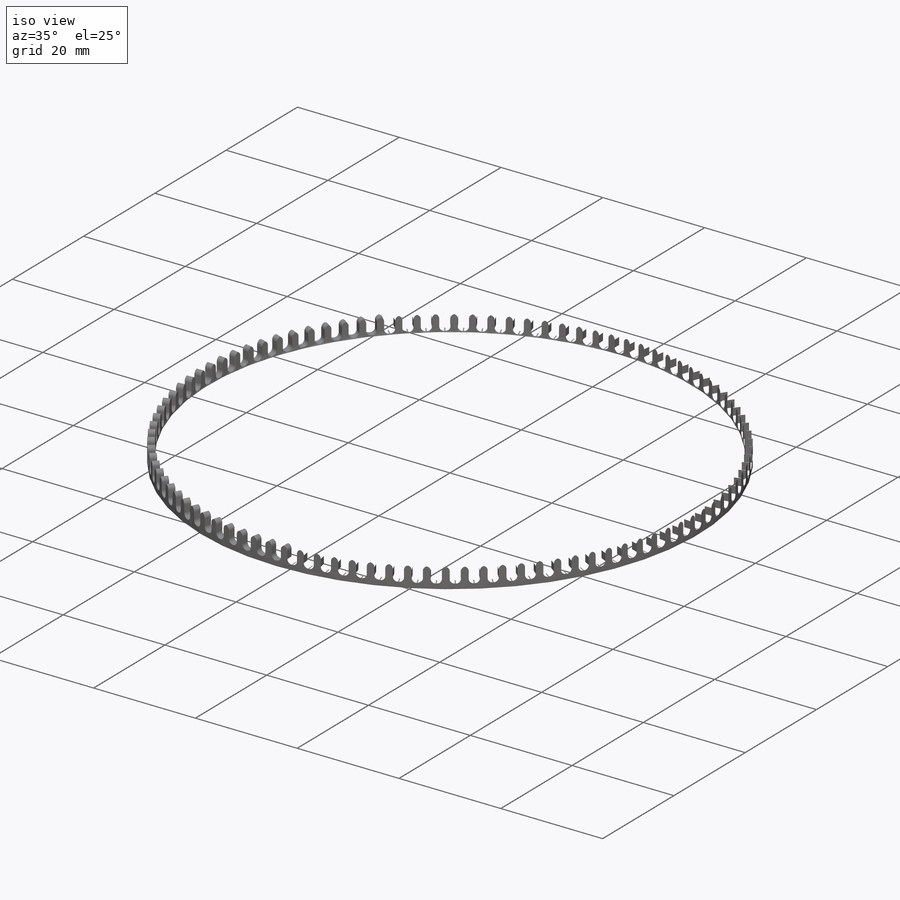
[diagram: iso view]
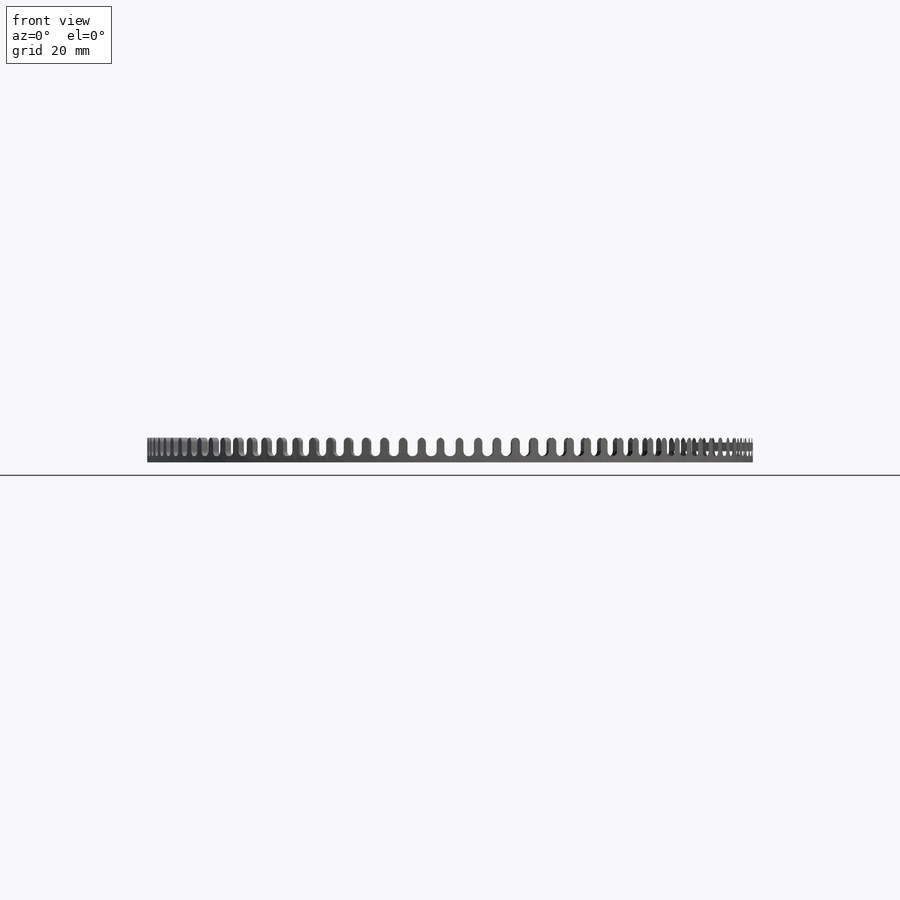
[diagram: front view]
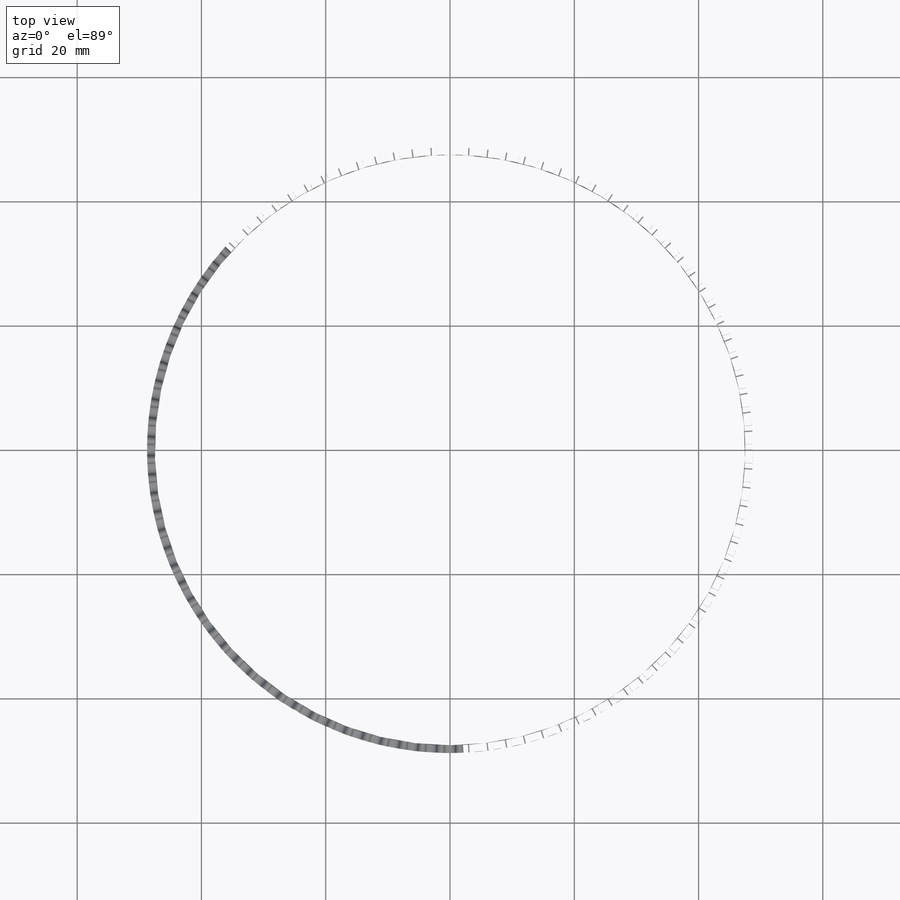
[diagram: top view]
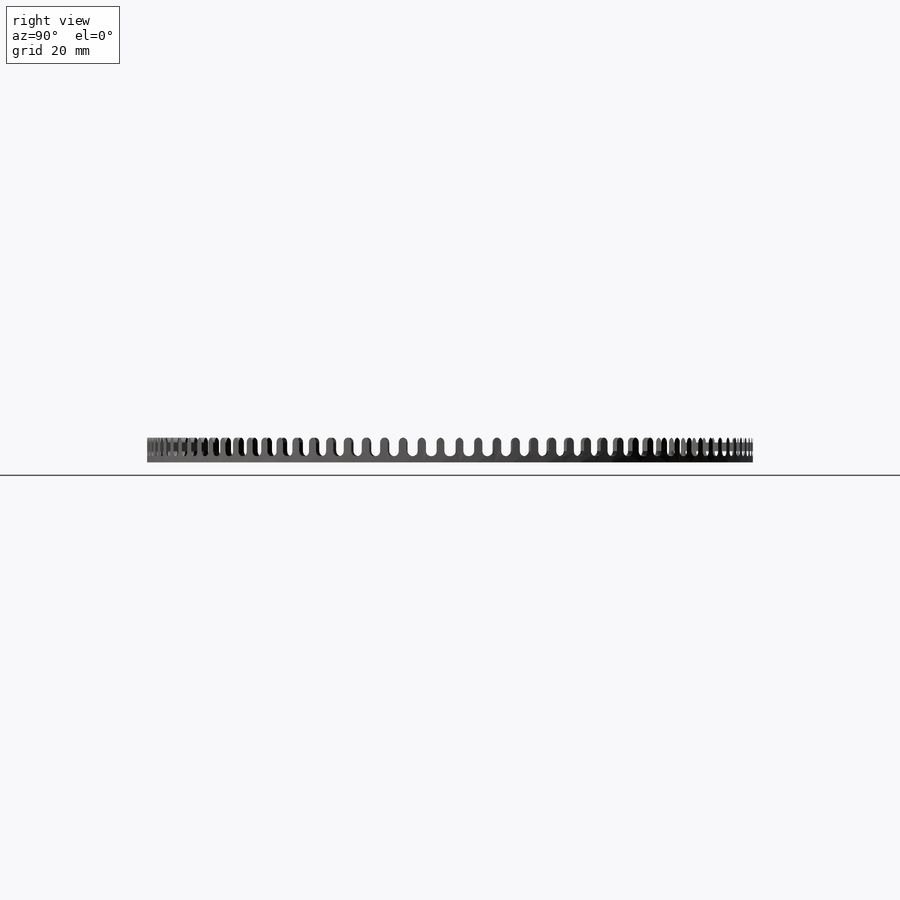
[diagram: right view]
SOLIDWORKS PART (.sldprt)
format: sldprt  version: not decoded by parser v0  size: 2,000,384 bytes
history: native  units: mm
features: plane x4, sketch x4, extrude x2, cut_extrude x2, material x1, pattern_circular x1, fillet x1, chamfer x1 (+12 scaffold rows collapsed)
feature tree (28):
  scaffold x12  (default folders/planes/origin — collapsed)
  material  "材质 <未指定>"
  plane  "前视基准面"
  plane  "上视基准面"
  plane  "右视基准面"
  sketch  "草图1"  dims[D1=97.5mm D2=95.0mm]
  extrude  "凸台-拉伸1"  Depth=6mm
  plane  "基准面1"
  sketch  "草图2"  dims[D1=3.0mm D2=1.8mm]
  cut_extrude  "切除-拉伸1"  [1 undecoded]
  pattern_circular  "阵列(圆周)1"  Count=100 Angle=360deg
  fillet  "圆角2"  Radius=0.8mm
  sketch  "草图3"
  extrude  "凸台-拉伸2"  Depth=2.5mm
  sketch  "草图4"  dims[D1=0.0mm]
  cut_extrude  "切除-拉伸2"  Depth=1.5mm
  chamfer  "倒角1"  Distance=0.5mm Angle=30deg
decode coverage: 9 of 11 modeling features carry decoded parameters
note: 1 parameter value undecoded
note: suppression state not decoded; provenance and decode notes live in map.json
